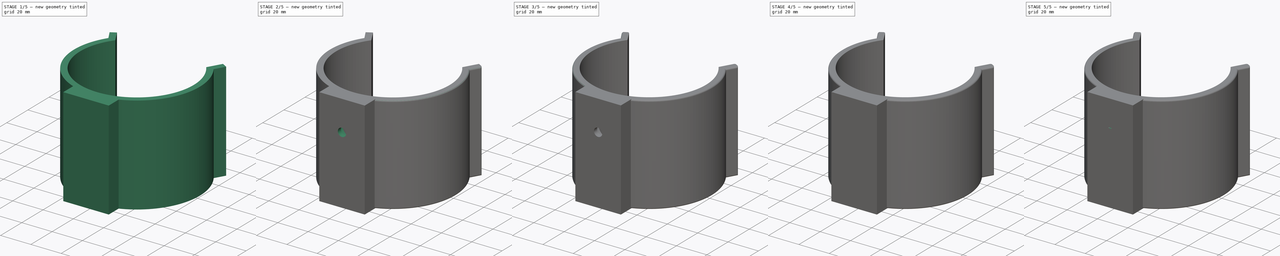
[diagram: build sequence overview — one tinted view per stage of 5, left to right]
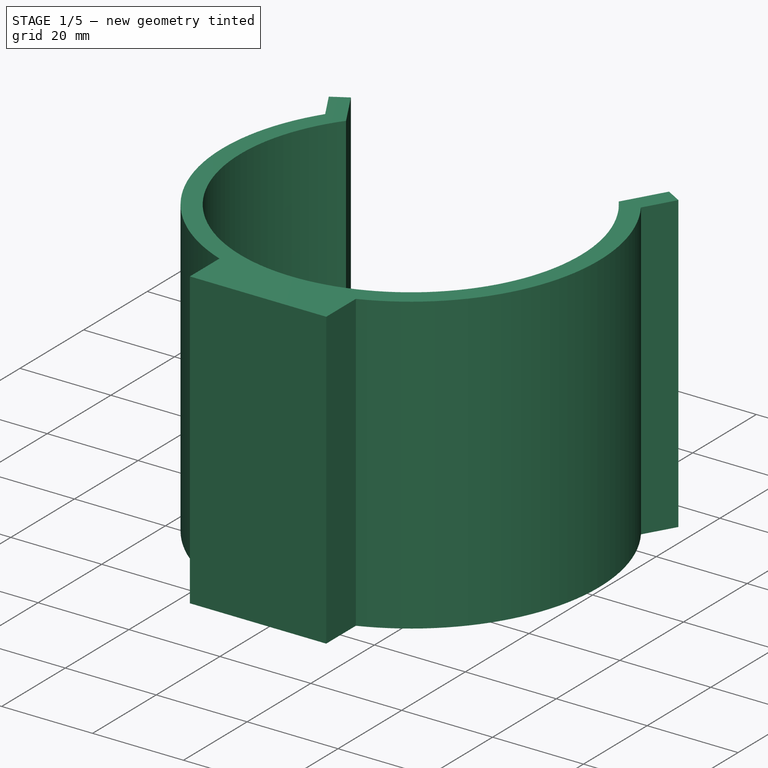
[diagram: stage 1 of 5 — iso view after this stage's code; geometry added in this stage tinted green]
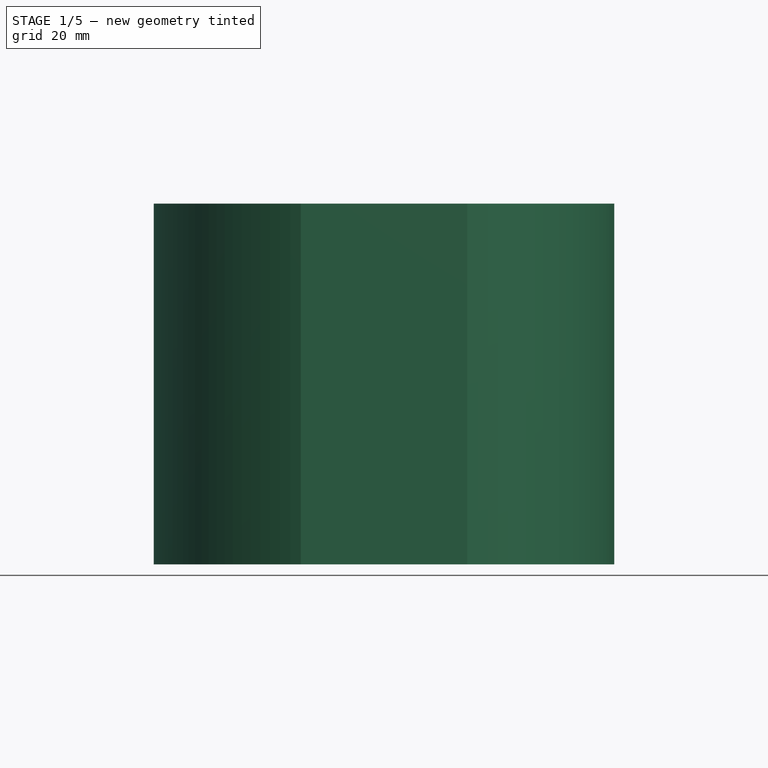
[diagram: stage 1 of 5 — front view after this stage's code; geometry added in this stage tinted green]
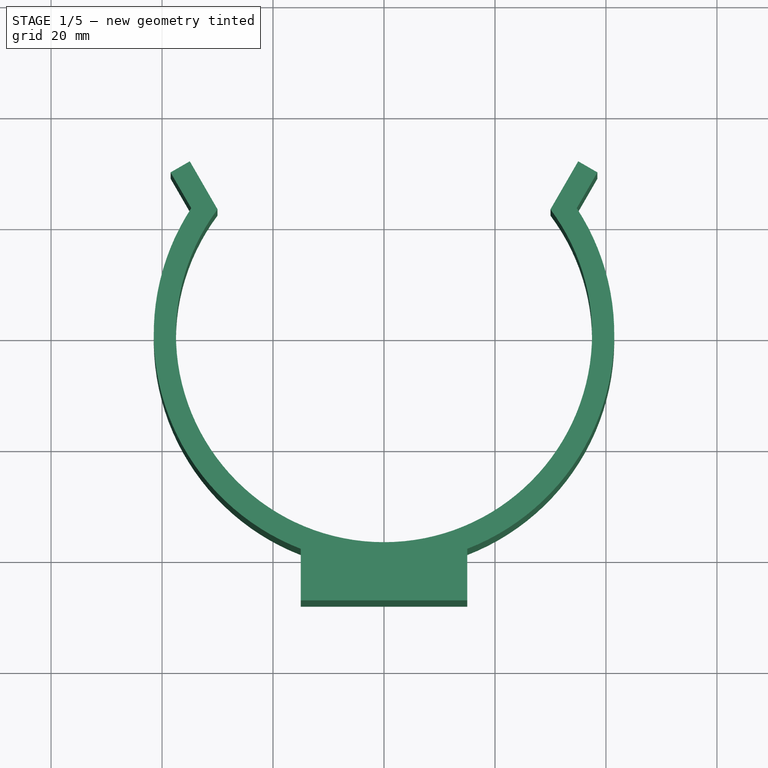
[diagram: stage 1 of 5 — top view after this stage's code; geometry added in this stage tinted green]
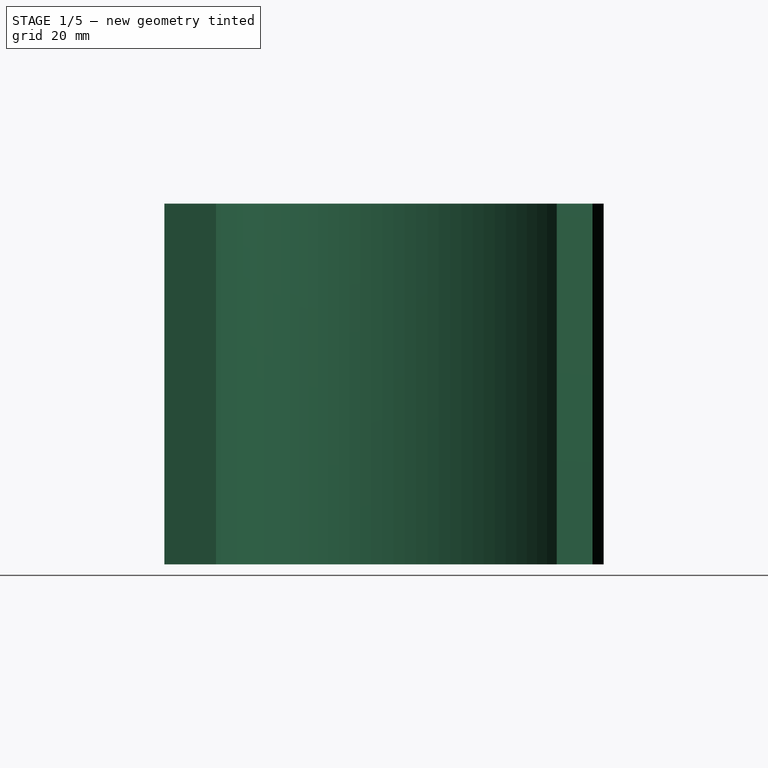
[diagram: stage 1 of 5 — right view after this stage's code; geometry added in this stage tinted green]
FCSTD DOCUMENT  (FreeCAD 0.19R24291 (Git))
Label: bike water cage 2 recovered
License: All rights reserved
LicenseURL: http://en.wikipedia.org/wiki/All_rights_reserved
objects: Sketcher::SketchObject×11, PartDesign::Pad×6, PartDesign::Pocket×5, PartDesign::Mirrored×3, PartDesign::Fillet×3, PartDesign::Body×2
note: 44 computed .brp shape members not serialized (recipe doc carries the construction recipe); baked Part::Feature solids carry a one-line shape summary decoded from their .brp

FEATURE [Sketcher::SketchObject] Sketch
  FullyConstrained = true
  MapMode = 5
  Support = -> [XY_Plane]
  sketch-geometry (6):
    g0: ArcOfCircle CenterX=0 CenterY=0 CenterZ=0 NormalX=0 NormalY=0 NormalZ=1 AngleXU=0 Radius=37.5 StartAngle=2.49809 EndAngle=4.71239
    g1: ArcOfCircle CenterX=0 CenterY=0 CenterZ=0 NormalX=0 NormalY=0 NormalZ=1 AngleXU=0 Radius=41.5 StartAngle=2.56267 EndAngle=4.71239
    g2: LineSegment StartX=-30 StartY=22.5 StartZ=0 EndX=-35 EndY=31.1603 EndZ=0
    g3: LineSegment StartX=-35 StartY=31.1603 StartZ=0 EndX=-38.4641 EndY=29.1603 EndZ=0
    g4: LineSegment StartX=-38.4641 StartY=29.1603 StartZ=0 EndX=-34.7376 EndY=22.7057 EndZ=0
    g5: LineSegment StartX=-6.9e-15 StartY=-37.5 StartZ=0 EndX=-7.6e-15 EndY=-41.5 EndZ=0
  constraints (18):
    c: Coincident(g0,g-1)
    c: PointOnObject(g0,g-2)
    c: Coincident(g1,g0)
    c: PointOnObject(g1,g-2)
    c: DistanceY(g1,g0) = 4
    c: Coincident(g2,g3)
    c: Coincident(g3,g4)
    c: Coincident(g4,g1)
    c: Diameter(g0) = 75
    c: Distance(g3) = 4
    c: Distance(g2) = 10
    c: Parallel(g4,g2)
    c: Perpendicular(g3,g2)
    c: DistanceX(g0,g-1) = 30
    c: Coincident(g0,g2)
    c: DistanceX(g2,g-1) = 35
    c: Coincident(g5,g0)
    c: Coincident(g5,g1)
FEATURE [PartDesign::Pad] Pad  label="holder"
  Direction = (0,0,1)
  Length = 65
  Length2 = 100
  Profile = -> Sketch
  Type = 0
FEATURE [Sketcher::SketchObject] Sketch001
  ExternalGeometry = -> [Pad]
  FullyConstrained = true
  MapMode = 5
  Support = -> [XY_Plane]
  sketch-geometry (4):
    g0: LineSegment StartX=-7.1e-15 StartY=-37.5 StartZ=0 EndX=-15 EndY=-37.5 EndZ=0
    g1: LineSegment StartX=-15 StartY=-37.5 StartZ=0 EndX=-15 EndY=-48 EndZ=0
    g2: LineSegment StartX=-15 StartY=-48 StartZ=0 EndX=-7.1e-15 EndY=-48 EndZ=0
    g3: LineSegment StartX=-7.1e-15 StartY=-48 StartZ=0 EndX=-7.1e-15 EndY=-37.5 EndZ=0
  constraints (11):
    c: Coincident(g0,g1)
    c: Coincident(g1,g2)
    c: Coincident(g2,g3)
    c: Coincident(g3,g0)
    c: Horizontal(g0)
    c: Horizontal(g2)
    c: Vertical(g1)
    c: Vertical(g3)
    c: Coincident(g0,g-3)
    c: DistanceY(g1,g1) = 10.5
    c: DistanceX(g2,g2) = 15
FEATURE [PartDesign::Pad] Pad001  label="mount001"
  BaseFeature = -> Pad
  Direction = (0,0,1)
  Length = 65
  Length2 = 100
  Profile = -> Sketch001
  Type = 0
FEATURE [PartDesign::Mirrored] Mirrored
  BaseFeature = -> Pad001
  MirrorPlane = -> Sketch001 [V_Axis]
  Originals = -> [Pad001,Pad]
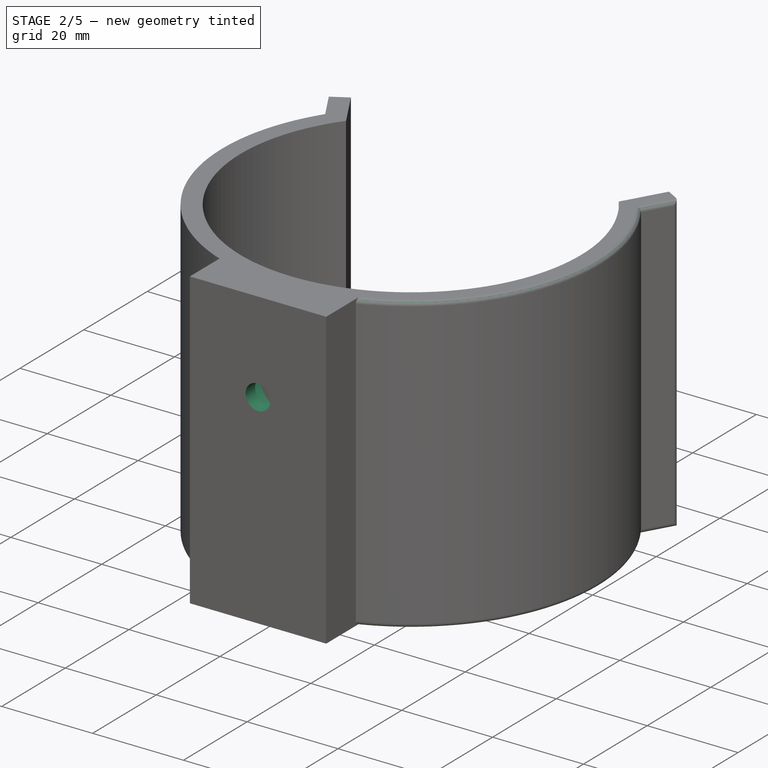
[diagram: stage 2 of 5 — iso view after this stage's code; geometry added in this stage tinted green]
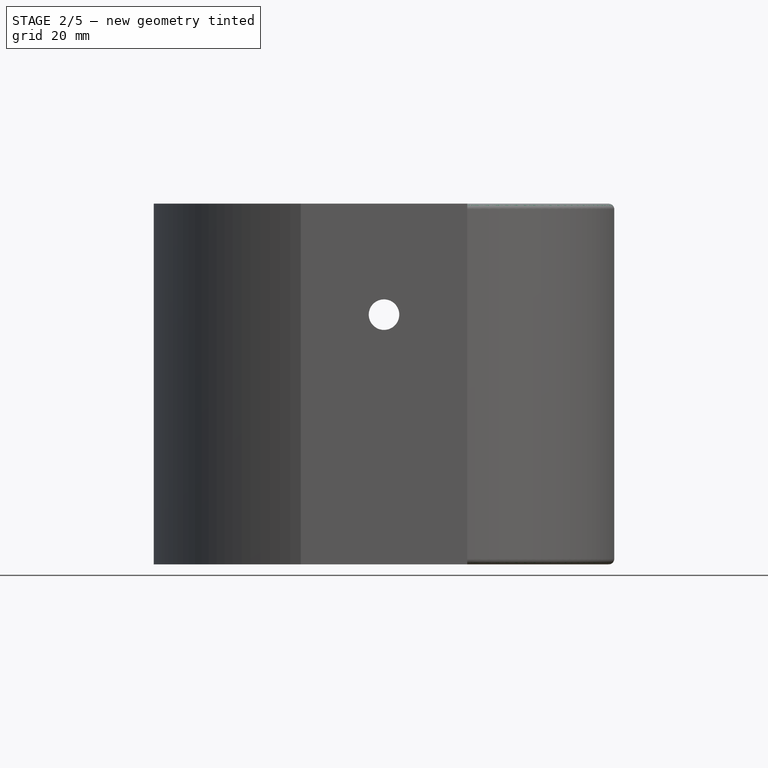
[diagram: stage 2 of 5 — front view after this stage's code; geometry added in this stage tinted green]
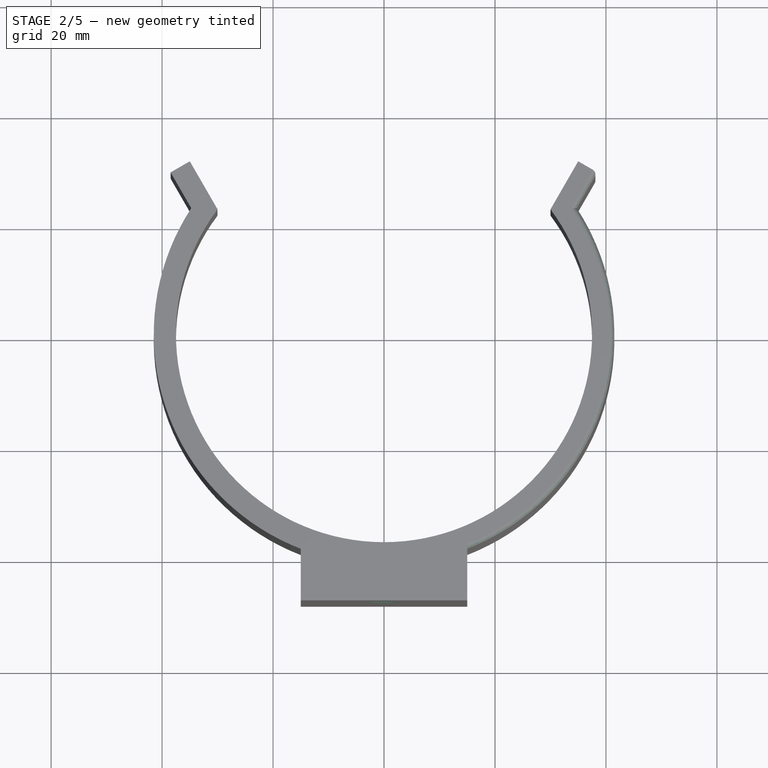
[diagram: stage 2 of 5 — top view after this stage's code; geometry added in this stage tinted green]
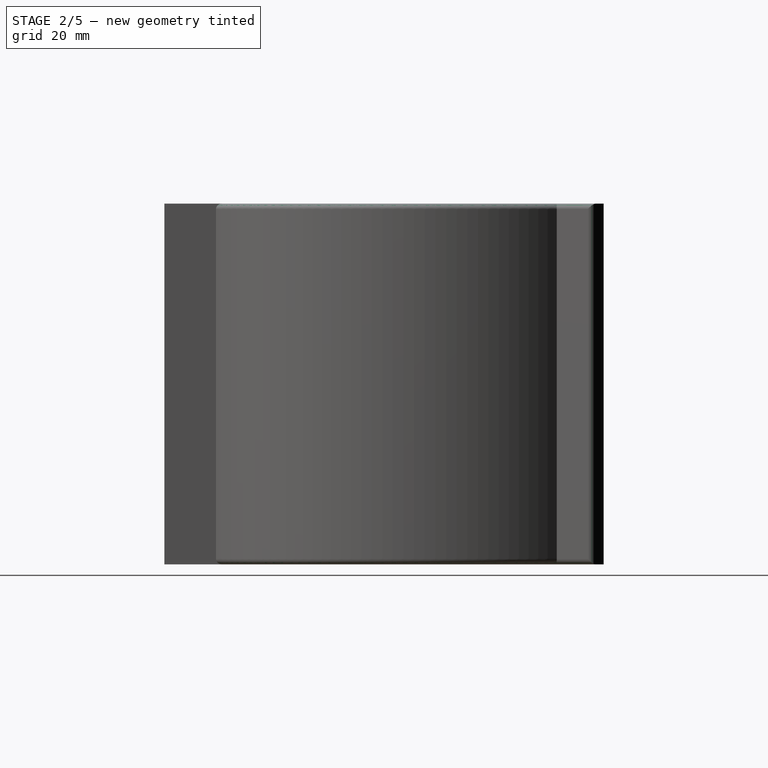
[diagram: stage 2 of 5 — right view after this stage's code; geometry added in this stage tinted green]
FEATURE [PartDesign::Body] Body001  label="lower"
  Group = -> [Sketch003,Pad002,Sketch004,Pad003,Mirrored001,Sketch005,Pocket001,Sketch007,Pad004,Mirrored002,Sketch008,Pocket002,Sketch009,Pocket003]
  Origin = -> Origin001
  Tip = -> Pocket003
FEATURE [Sketcher::SketchObject] Sketch010
  FullyConstrained = true
  MapMode = 5
  Placement = pos=(0,-48,0) rot=(1,0,0;1.5708rad)
  Support = -> [Pad001]
  sketch-geometry (1):
    g0: Circle CenterX=0 CenterY=45 CenterZ=0 NormalX=0 NormalY=0 NormalZ=1 AngleXU=0 Radius=8.25
  constraints (3):
    c: PointOnObject(g0,g-2)
    c: Diameter(g0) = 16.5
    c: DistanceY(g-1,g0) = 45
FEATURE [PartDesign::Pocket] Pocket
  BaseFeature = -> Mirrored
  Length = 5
  Length2 = 100
  Profile = -> Sketch010
  Type = 1
FEATURE [Sketcher::SketchObject] Sketch011
  FullyConstrained = false
  MapMode = 5
  Placement = pos=(0,-48,0) rot=(1,0,0;1.5708rad)
  Support = -> [Pocket]
  sketch-geometry (1):
    g0: Circle CenterX=0 CenterY=45 CenterZ=0 NormalX=0 NormalY=0 NormalZ=1 AngleXU=0 Radius=11.4343
  constraints (2):
    c: PointOnObject(g0,g-2)
    c: DistanceY(g-1,g0) = 45
FEATURE [PartDesign::Pad] Pad005  label="cludge-plug"
  BaseFeature = -> Pocket
  Direction = (1,1,1)
  Length = 3
  Length2 = 100
  Profile = -> Sketch011
  Reversed = true
  Type = 0
FEATURE [Sketcher::SketchObject] Sketch012
  FullyConstrained = true
  MapMode = 5
  Placement = pos=(0,-48,0) rot=(1,0,0;1.5708rad)
  Support = -> [Pad005]
  sketch-geometry (1):
    g0: Circle CenterX=0 CenterY=45 CenterZ=0 NormalX=0 NormalY=0 NormalZ=1 AngleXU=0 Radius=2.75
  constraints (3):
    c: PointOnObject(g0,g-2)
    c: DistanceY(g-1,g0) = 45
    c: Diameter(g0) = 5.5
FEATURE [PartDesign::Pocket] Pocket004
  BaseFeature = -> Pad005
  Length = 3
  Length2 = 100
  Profile = -> Sketch012
  Type = 1
FEATURE [PartDesign::Fillet] Fillet
  Base = -> Pocket004 [Edge37,Edge36,Edge57,Edge42,Edge43]
  BaseFeature = -> Pocket004
  Radius = 1
  SupportTransform = false
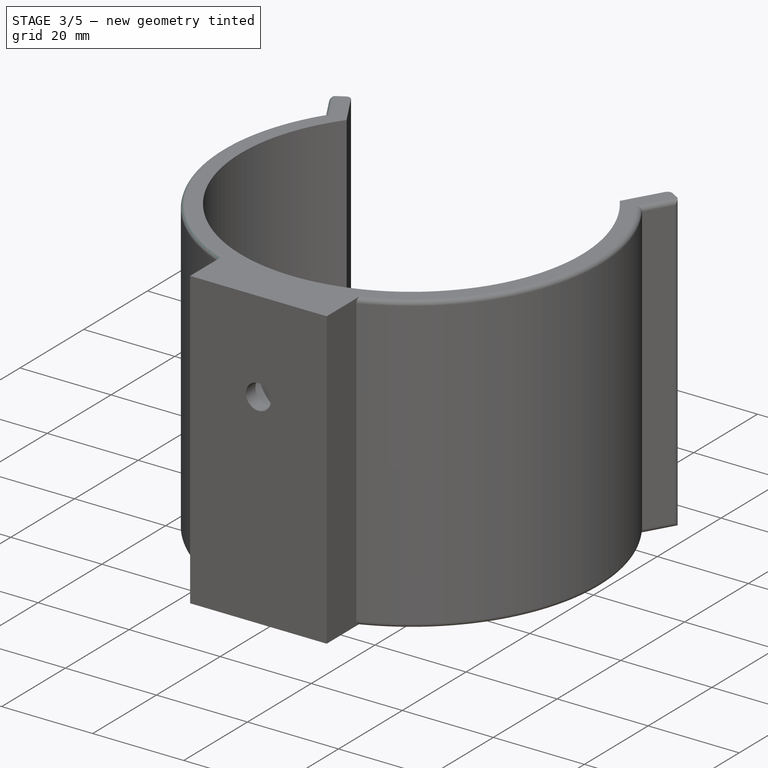
[diagram: stage 3 of 5 — iso view after this stage's code; geometry added in this stage tinted green]
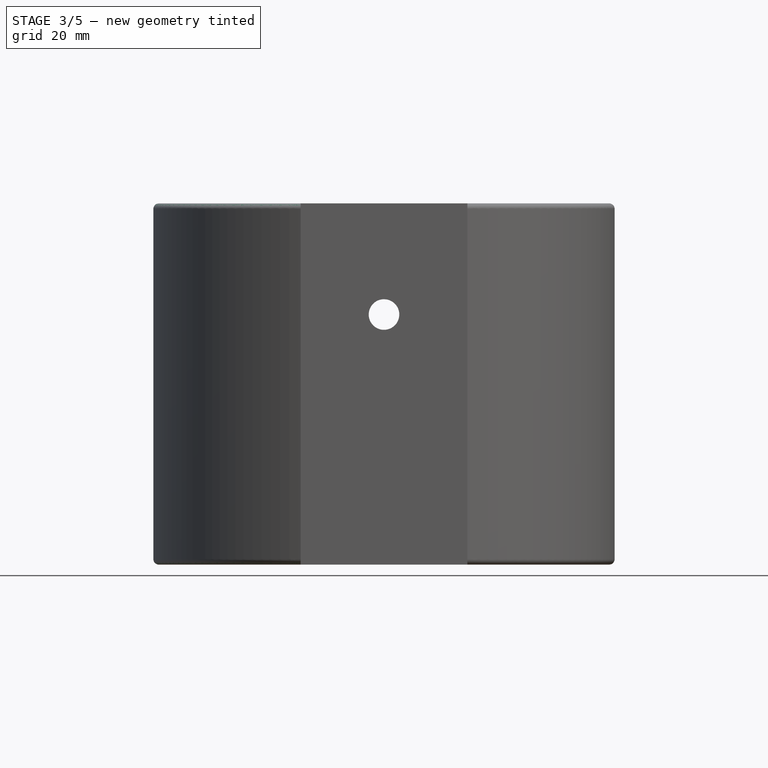
[diagram: stage 3 of 5 — front view after this stage's code; geometry added in this stage tinted green]
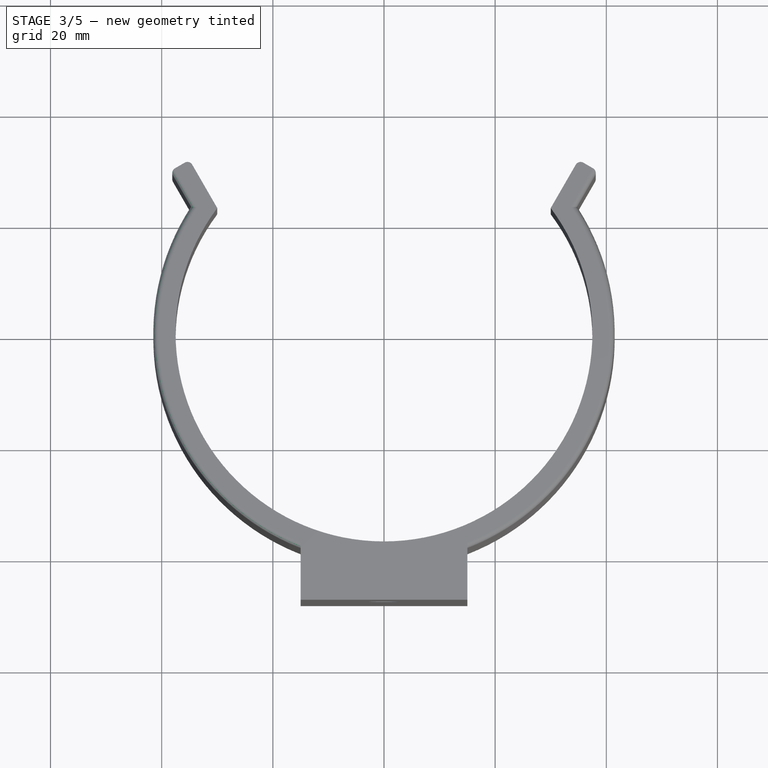
[diagram: stage 3 of 5 — top view after this stage's code; geometry added in this stage tinted green]
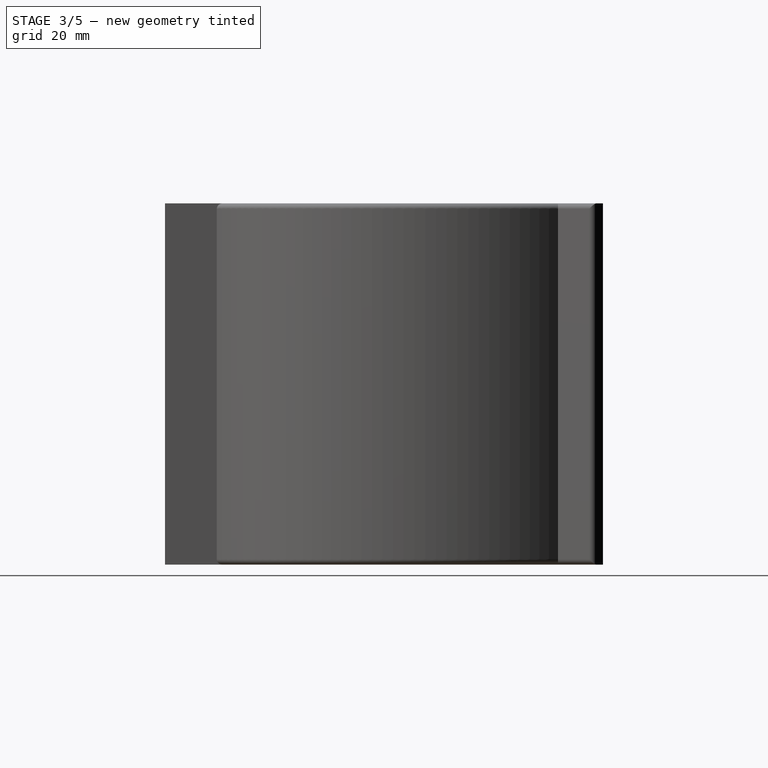
[diagram: stage 3 of 5 — right view after this stage's code; geometry added in this stage tinted green]
FEATURE [Sketcher::SketchObject] Sketch003
  FullyConstrained = true
  MapMode = 5
  Support = -> [XY_Plane001]
  sketch-geometry (4):
    g0: ArcOfCircle CenterX=0 CenterY=0 CenterZ=0 NormalX=0 NormalY=0 NormalZ=1 AngleXU=0 Radius=37.5 StartAngle=2.49809 EndAngle=4.71239
    g1: ArcOfCircle CenterX=0 CenterY=0 CenterZ=0 NormalX=0 NormalY=0 NormalZ=1 AngleXU=0 Radius=40.5 StartAngle=2.55256 EndAngle=4.71239
    g2: LineSegment StartX=0 StartY=-37.5 StartZ=0 EndX=-7.4e-15 EndY=-40.5 EndZ=0
    g3: LineSegment StartX=-33.6749 StartY=22.5 StartZ=0 EndX=-30 EndY=22.5 EndZ=0
  constraints (12):
    c: Coincident(g0,g-1)
    c: PointOnObject(g0,g-2)
    c: Coincident(g1,g0)
    c: PointOnObject(g1,g-2)
    c: DistanceY(g1,g0) = 3
    c: Diameter(g0) = 75
    c: DistanceX(g0,g-1) = 30
    c: Coincident(g2,g0)
    c: Coincident(g2,g1)
    c: Coincident(g3,g1)
    c: Coincident(g3,g0)
    c: Horizontal(g3)
FEATURE [PartDesign::Pad] Pad002  label="rim"
  Direction = (0,0,1)
  Length = 7
  Length2 = 100
  Profile = -> Sketch003
  Type = 0
FEATURE [PartDesign::Fillet] Fillet001
  Base = -> Fillet [Edge62,Edge61,Edge80,Edge65,Edge66]
  BaseFeature = -> Fillet
  Radius = 1
  SupportTransform = false
FEATURE [PartDesign::Fillet] Fillet002
  Base = -> Fillet001 [Edge24,Edge86]
  BaseFeature = -> Fillet001
  Radius = 1
  SupportTransform = false
FEATURE [PartDesign::Body] Body  label="upper"
  Group = -> [Sketch,Pad,Sketch001,Pad001,Mirrored,Sketch010,Pocket,Sketch011,Pad005,Sketch012,Pocket004,Fillet,Fillet001,Fillet002]
  Origin = -> Origin
  Tip = -> Fillet002
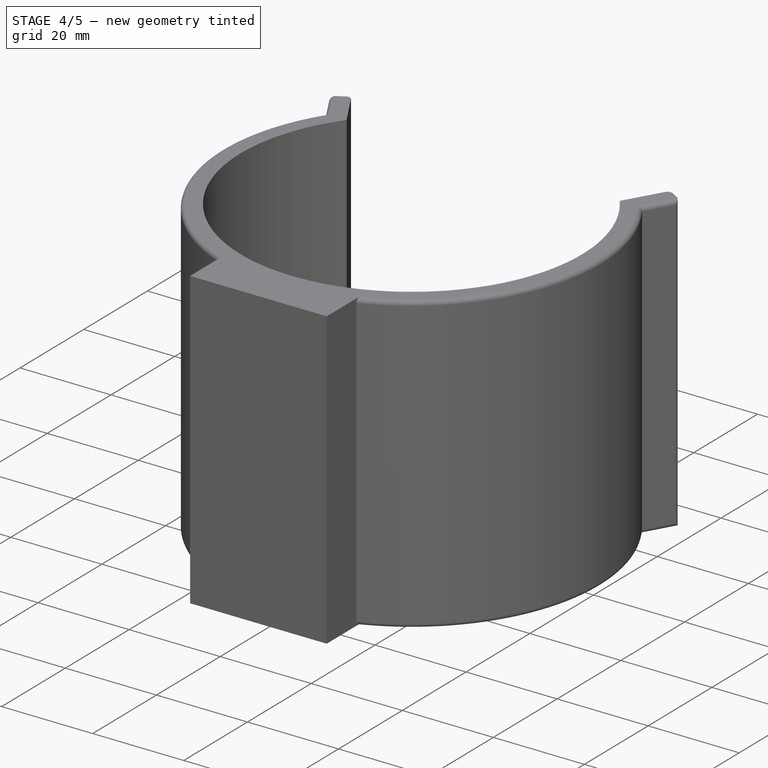
[diagram: stage 4 of 5 — iso view after this stage's code; geometry added in this stage tinted green]
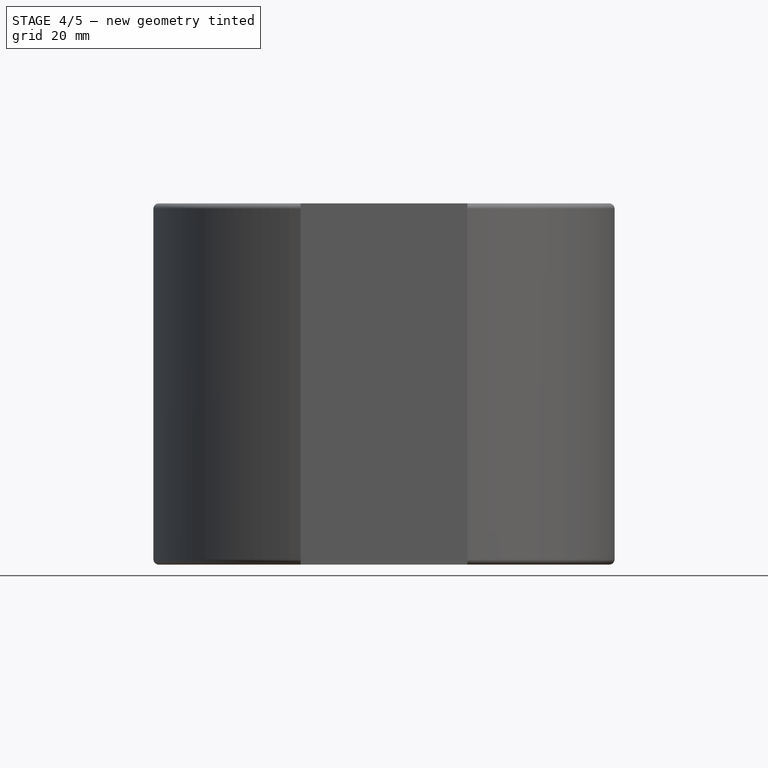
[diagram: stage 4 of 5 — front view after this stage's code; geometry added in this stage tinted green]
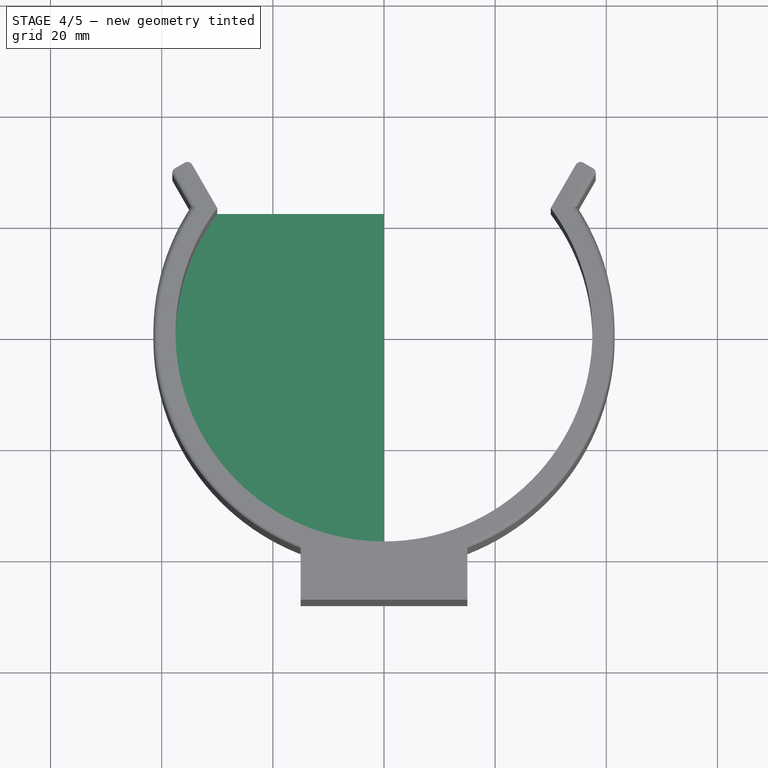
[diagram: stage 4 of 5 — top view after this stage's code; geometry added in this stage tinted green]
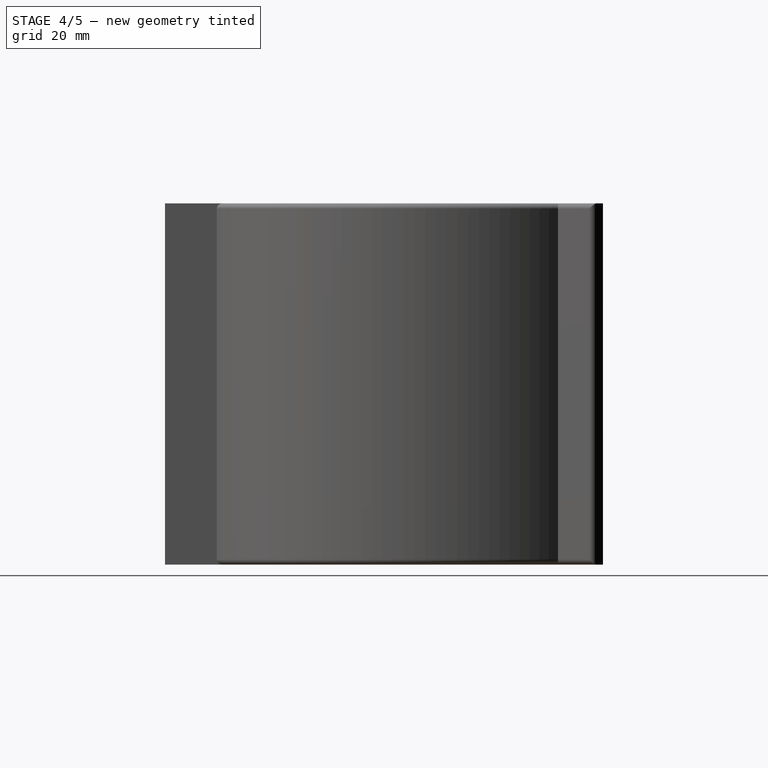
[diagram: stage 4 of 5 — right view after this stage's code; geometry added in this stage tinted green]
FEATURE [Sketcher::SketchObject] Sketch004
  ExternalGeometry = -> [Pad002]
  FullyConstrained = true
  MapMode = 5
  Support = -> [XY_Plane001]
  sketch-geometry (4):
    g0: LineSegment StartX=-7.1e-15 StartY=-37.5 StartZ=0 EndX=-15 EndY=-37.5 EndZ=0
    g1: LineSegment StartX=-15 StartY=-37.5 StartZ=0 EndX=-15 EndY=-48 EndZ=0
    g2: LineSegment StartX=-15 StartY=-48 StartZ=0 EndX=-7.1e-15 EndY=-48 EndZ=0
    g3: LineSegment StartX=-7.1e-15 StartY=-48 StartZ=0 EndX=-7.1e-15 EndY=-37.5 EndZ=0
  constraints (11):
    c: Coincident(g0,g1)
    c: Coincident(g1,g2)
    c: Coincident(g2,g3)
    c: Coincident(g3,g0)
    c: Horizontal(g0)
    c: Horizontal(g2)
    c: Vertical(g1)
    c: Vertical(g3)
    c: Coincident(g0,g-3)
    c: DistanceY(g1,g1) = 10.5
    c: DistanceX(g2,g2) = 15
FEATURE [PartDesign::Pad] Pad003  label="mount"
  BaseFeature = -> Pad002
  Direction = (0,0,1)
  Length = 65
  Length2 = 100
  Profile = -> Sketch004
  Type = 0
FEATURE [PartDesign::Mirrored] Mirrored001
  BaseFeature = -> Pad003
  MirrorPlane = -> Sketch004 [V_Axis]
  Originals = -> [Pad003,Pad002]
FEATURE [Sketcher::SketchObject] Sketch005
  FullyConstrained = false
  MapMode = 5
  Placement = pos=(15,0,0) rot=(0.57735,0.57735,0.57735;2.0944rad)
  Support = -> [Mirrored001]
  sketch-geometry (1):
    g0: Circle CenterX=6e-16 CenterY=20 CenterZ=0 NormalX=0 NormalY=0 NormalZ=1 AngleXU=0 Radius=2.5
  constraints (1):
    c: Diameter(g0) = 5
FEATURE [PartDesign::Pocket] Pocket001
  BaseFeature = -> Mirrored001
  Length = 5
  Length2 = 100
  Profile = -> Sketch005
  Type = 1
FEATURE [Sketcher::SketchObject] Sketch007
  FullyConstrained = true
  MapMode = 5
  Support = -> [XY_Plane001]
  sketch-geometry (3):
    g0: ArcOfCircle CenterX=0 CenterY=0 CenterZ=0 NormalX=0 NormalY=0 NormalZ=1 AngleXU=0 Radius=39 StartAngle=2.52685 EndAngle=4.71239
    g1: LineSegment StartX=-31.86 StartY=22.4931 StartZ=0 EndX=0 EndY=22.4931 EndZ=0
    g2: LineSegment StartX=-7.2e-15 StartY=-39 StartZ=0 EndX=0 EndY=22.4931 EndZ=0
  constraints (9):
    c: PointOnObject(g0,g-2)
    c: Coincident(g1,g0)
    c: Horizontal(g1)
    c: Diameter(g0) = 78
    c: Coincident(g0,g-1)
    c: PointOnObject(g1,g-2)
    c: Coincident(g2,g0)
    c: Coincident(g2,g1)
    c: DistanceX(g1,g1) = 31.86
FEATURE [PartDesign::Pad] Pad004  label="floor001"
  BaseFeature = -> Pocket001
  Direction = (0,0,1)
  Length = 4
  Length2 = 100
  Profile = -> Sketch007
  Type = 0
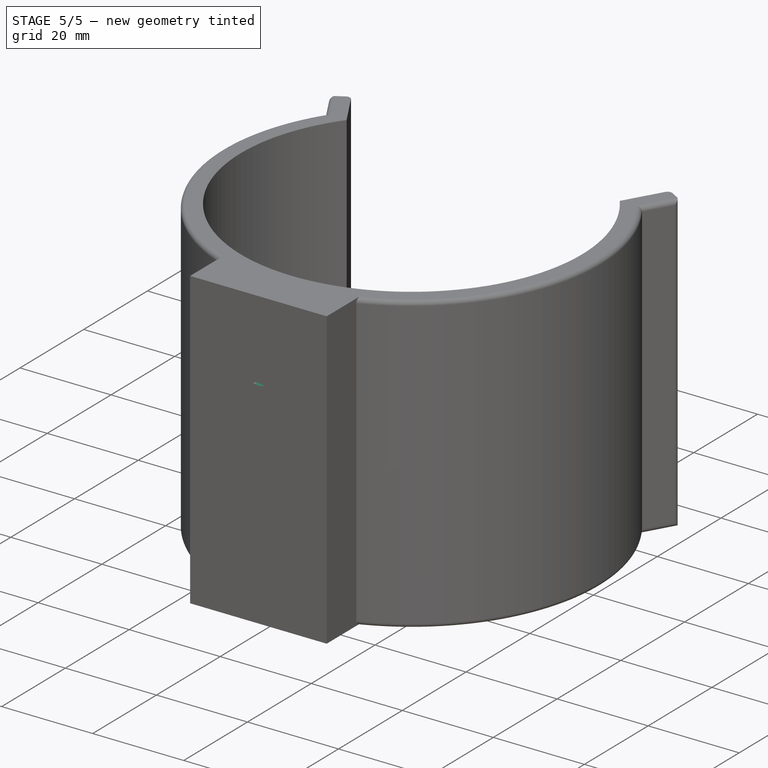
[diagram: stage 5 of 5 — iso view after this stage's code; geometry added in this stage tinted green]
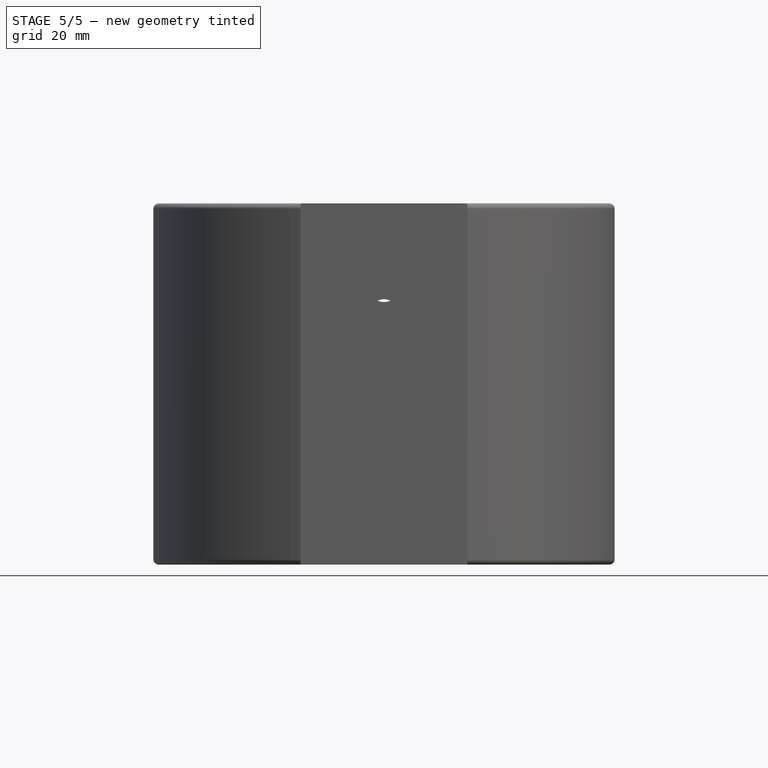
[diagram: stage 5 of 5 — front view after this stage's code; geometry added in this stage tinted green]
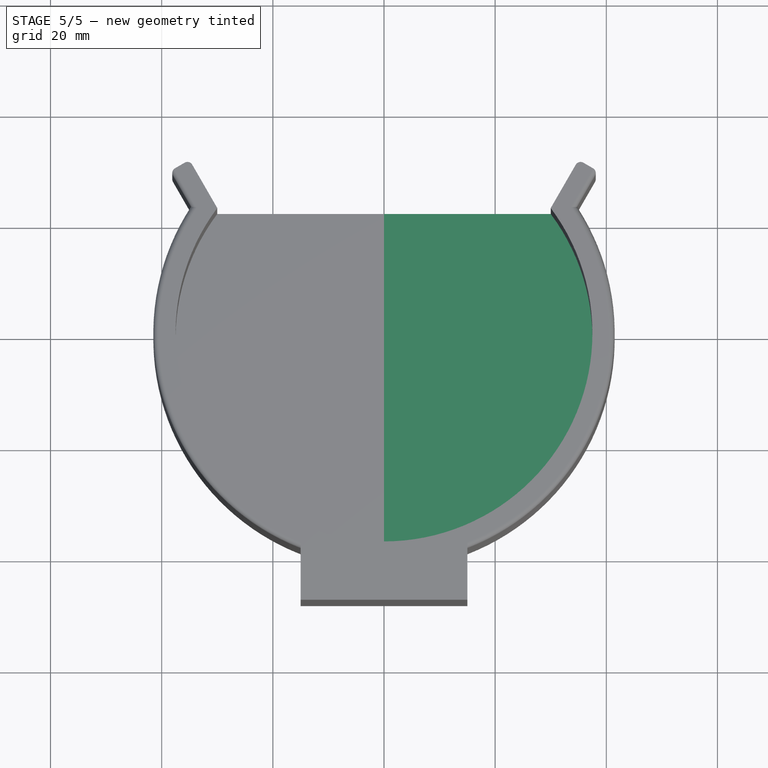
[diagram: stage 5 of 5 — top view after this stage's code; geometry added in this stage tinted green]
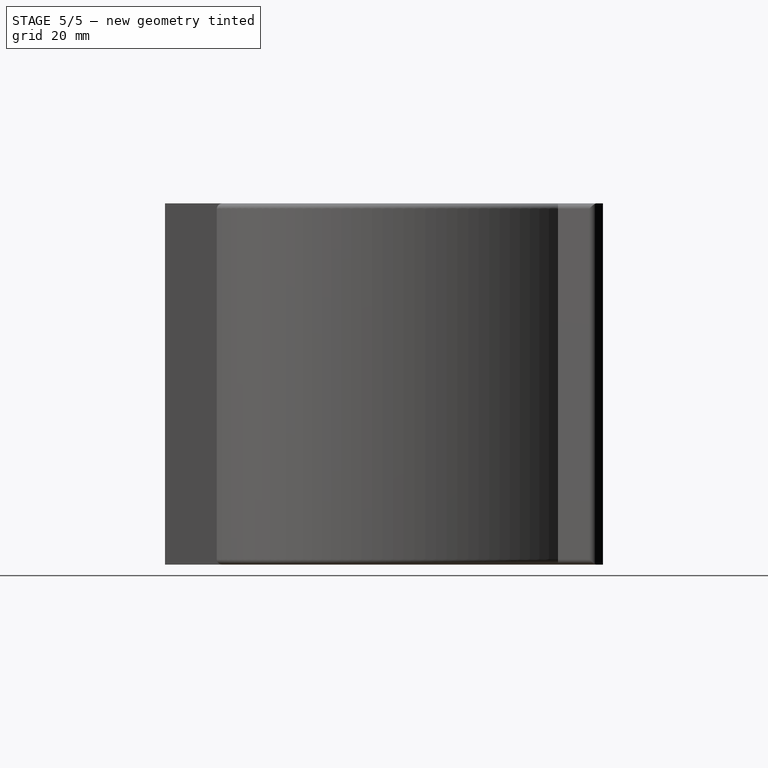
[diagram: stage 5 of 5 — right view after this stage's code; geometry added in this stage tinted green]
FEATURE [PartDesign::Mirrored] Mirrored002
  BaseFeature = -> Pad004
  MirrorPlane = -> Sketch007 [V_Axis]
  Originals = -> [Pad004]
FEATURE [Sketcher::SketchObject] Sketch008
  FullyConstrained = false
  MapMode = 5
  Placement = pos=(0,-48,0) rot=(1,0,0;1.5708rad)
  Support = -> [Mirrored002]
  sketch-geometry (1):
    g0: Circle CenterX=-9e-16 CenterY=50 CenterZ=0 NormalX=0 NormalY=0 NormalZ=1 AngleXU=0 Radius=2.75
  constraints (2):
    c: Diameter(g0) = 5.5
    c: DistanceY(g-1,g0) = 50
FEATURE [PartDesign::Pocket] Pocket002  label="hole-through"
  BaseFeature = -> Mirrored002
  Length = 5
  Length2 = 100
  Profile = -> Sketch008
  Type = 1
FEATURE [Sketcher::SketchObject] Sketch009
  ExternalGeometry = -> [Pocket002]
  FullyConstrained = false
  MapMode = 5
  Placement = pos=(0,-37.5,0) rot=(0,0.707107,0.707107;3.14159rad)
  Support = -> [Pocket002]
  sketch-geometry (1):
    g0: Circle CenterX=3.73e-13 CenterY=50 CenterZ=0 NormalX=0 NormalY=0 NormalZ=1 AngleXU=0 Radius=8.25
  constraints (2):
    c: Diameter(g0) = 16.5
    c: DistanceY(g-1,g0) = 50
FEATURE [PartDesign::Pocket] Pocket003  label="hole-recessed"
  BaseFeature = -> Pocket002
  Length = 7.5
  Length2 = 100
  Profile = -> Sketch009
  Type = 0
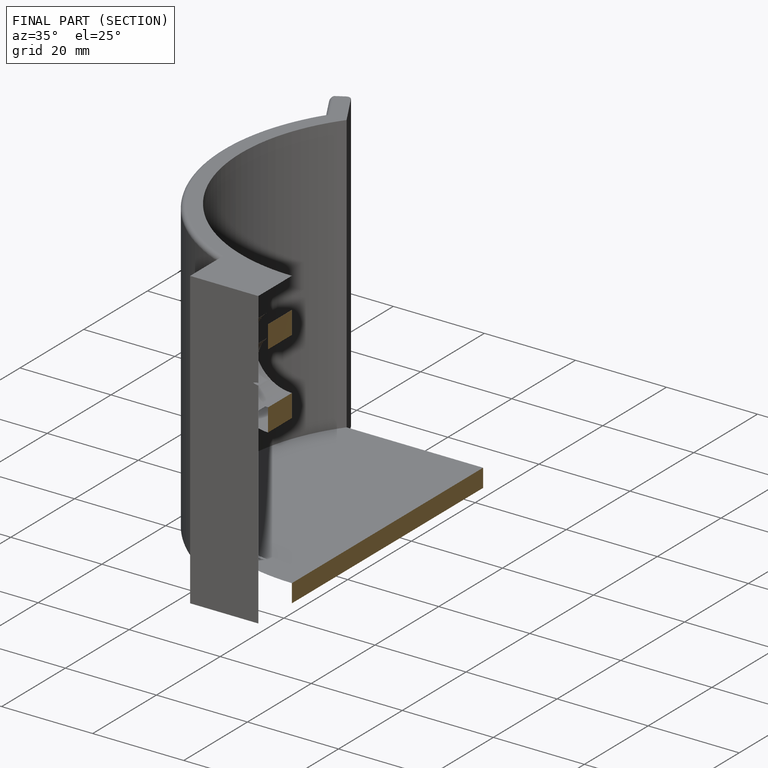
[diagram: finished part — half-section view (interior)]
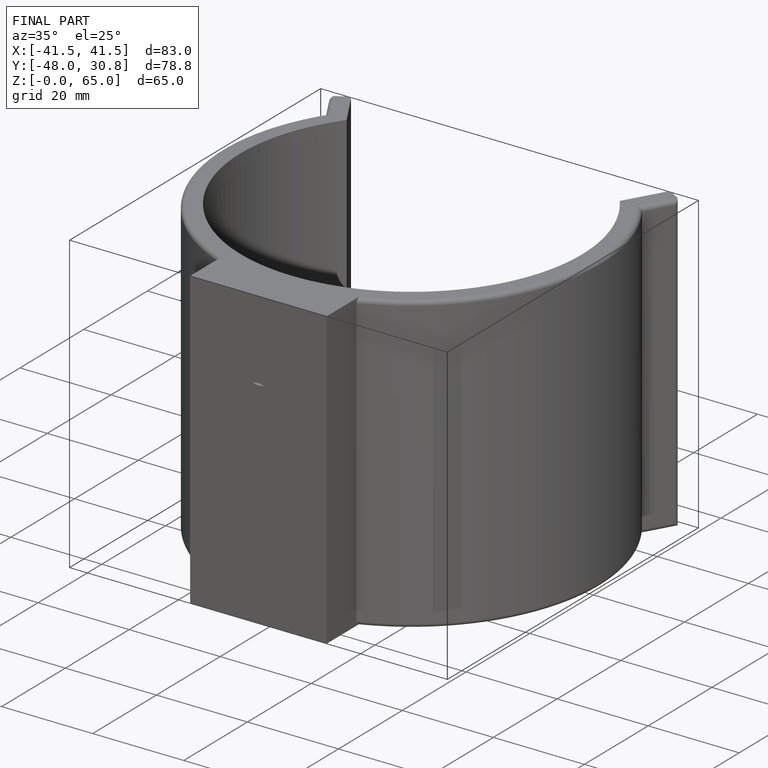
[diagram: finished part — iso view with bounding-box wireframe]
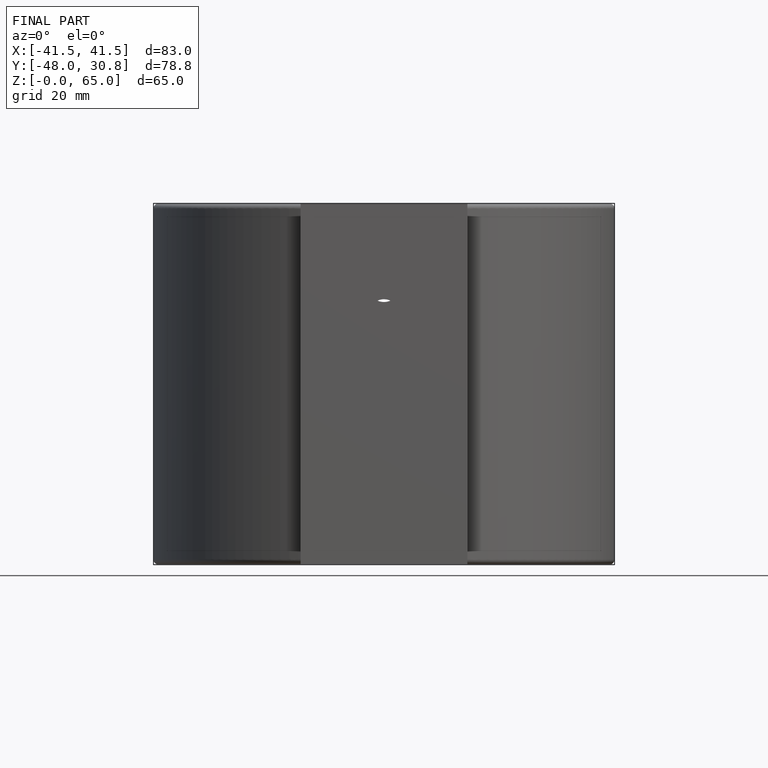
[diagram: finished part — front view with bounding-box wireframe]
